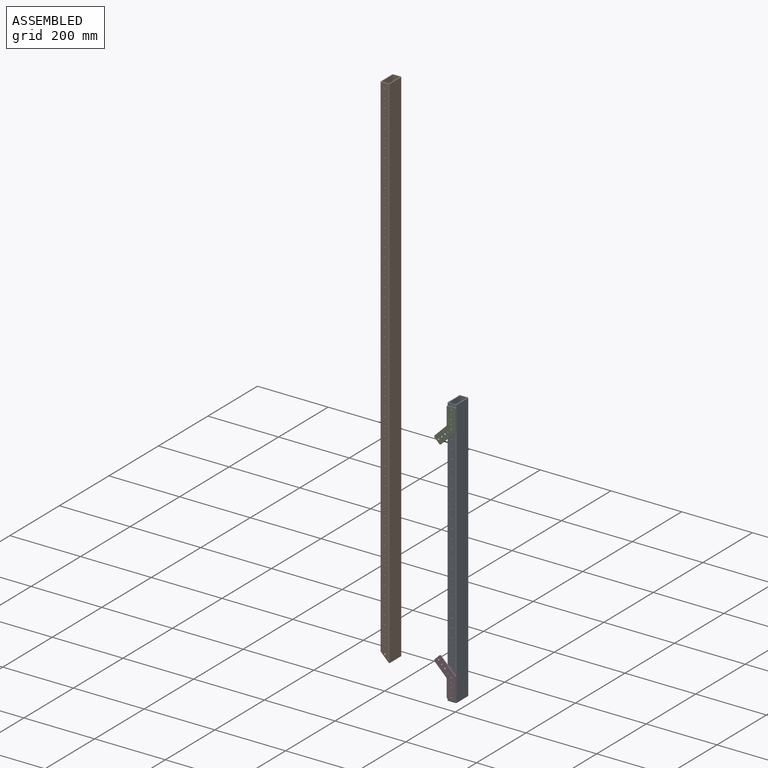
[diagram: assembled view]
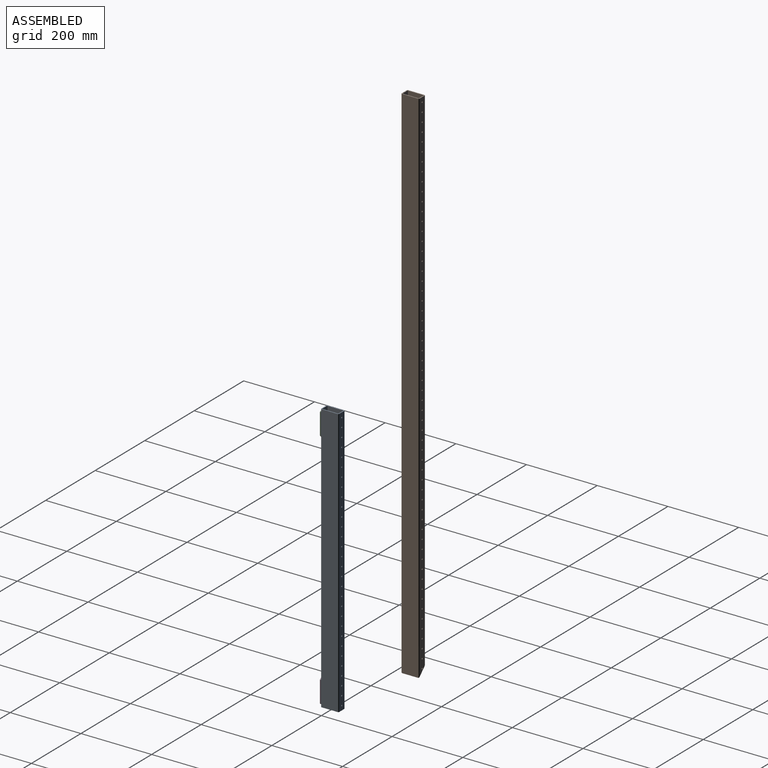
[diagram: assembled view, second angle]
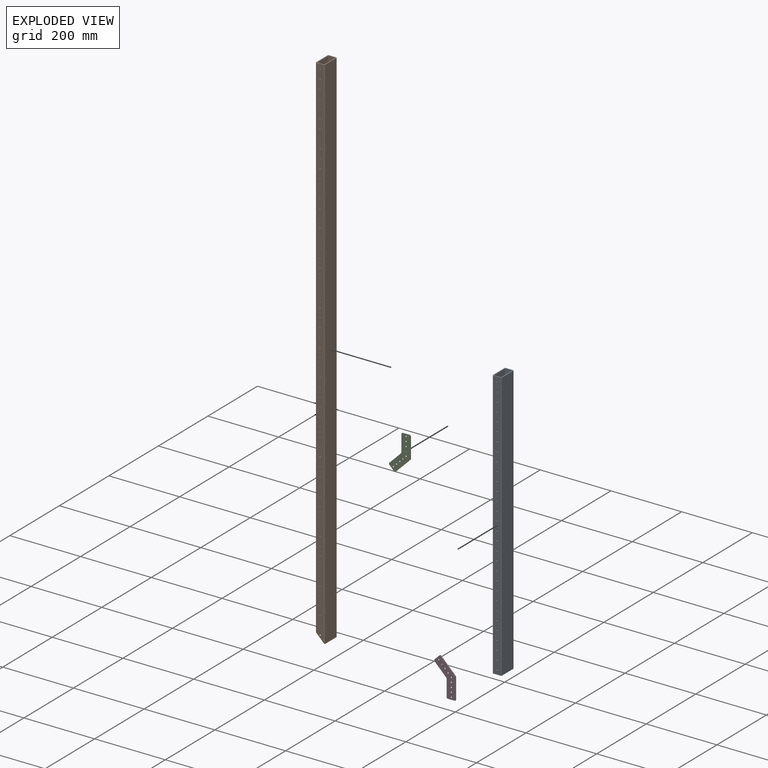
[diagram: exploded view]
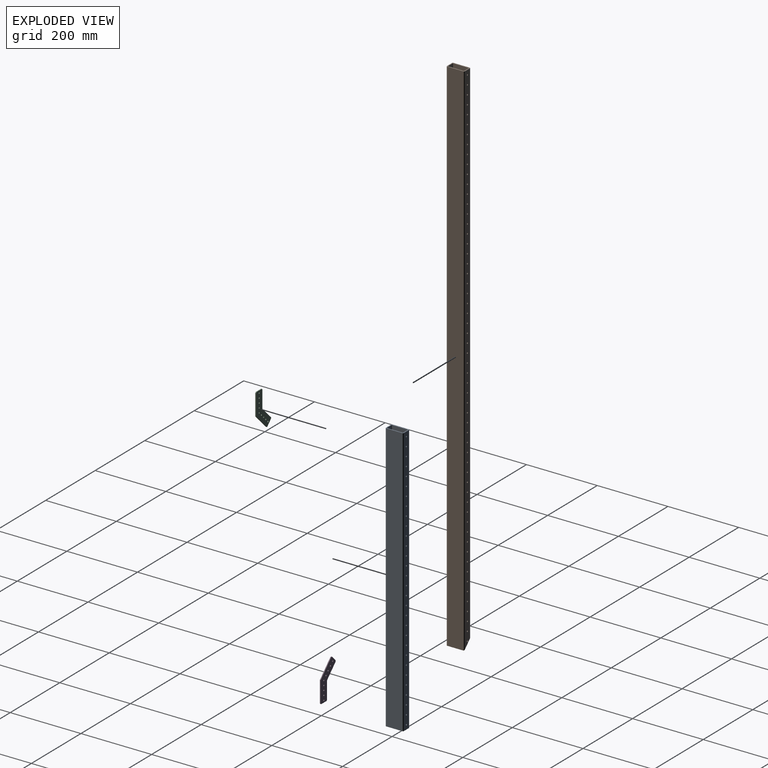
[diagram: exploded view, second angle]
ASSEMBLY  parts=4 mates=2
PART A: 78 faces, bbox 25.4x50.8x762 mm
  f0: plane 762x45.72mm, normal (1,0,0), area 34838.6mm2, adj f2,f3,f74,f77
  f1: plane 762x20.32mm, normal (0,1,0), area 15080mm2, adj f3,f4,f43,f44,f45,f46,f47,f48
  f2: cylinder r=2.54mm len=762mm, axis (0,0,-1), area 3040.2mm2, adj f0,f74,f76,f77
  f3: cylinder r=2.54mm len=762mm, axis (0,0,-1), area 3040.2mm2, adj f0,f1,f74,f77
  f4: cylinder r=2.54mm len=762mm, axis (0,0,-1), area 3040.2mm2, adj f1,f74,f75,f77
  f5: cylinder r=2.54mm len=762mm, axis (0,0,-1), area 3040.2mm2, adj f74,f75,f76,f77
  f6: plane 762x44.72mm, normal (-1,0,0), area 34076.6mm2, adj f10,f13,f74,f77
  f7: plane 762x19.32mm, normal (0,-1,0), area 14318mm2, adj f10,f11,f43,f44,f45,f46,f47,f48
  f8: plane 762x44.72mm, normal (1,0,0), area 34076.6mm2, adj f11,f12,f74,f77
  f9: plane 762x19.32mm, normal (0,1,0), area 14318mm2, adj f12,f13,f14,f15,f16,f17,f18,f19
  f10: cylinder r=0.5mm len=762mm, axis (0,0,1), area 598.5mm2, adj f6,f7,f74,f77
  f11: cylinder r=0.5mm len=762mm, axis (0,0,1), area 598.5mm2, adj f7,f8,f74,f77
  f12: cylinder r=0.5mm len=762mm, axis (0,0,1), area 598.5mm2, adj f8,f9,f74,f77
  f13: cylinder r=0.5mm len=762mm, axis (0,0,1), area 598.5mm2, adj f6,f9,f74,f77
  f14: cylinder r=2.07mm len=4.14mm, axis (0,1,0), area 33mm2, adj f9,f76
  f15: cylinder r=2.07mm len=4.14mm, axis (0,1,0), area 33mm2, adj f9,f76
  f16: cylinder r=2.07mm len=4.14mm, axis (0,1,0), area 33mm2, adj f9,f76
  f17: cylinder r=2.07mm len=4.14mm, axis (0,1,0), area 33mm2, adj f9,f76
  f18: cylinder r=2.07mm len=4.14mm, axis (0,1,0), area 33mm2, adj f9,f76
  f19: cylinder r=2.07mm len=4.14mm, axis (0,1,0), area 33mm2, adj f9,f76
  f20: cylinder r=2.07mm len=4.14mm, axis (0,1,0), area 33mm2, adj f9,f76
  f21: cylinder r=2.07mm len=4.14mm, axis (0,1,0), area 33mm2, adj f9,f76
  f22: cylinder r=2.07mm len=4.14mm, axis (0,1,0), area 33mm2, adj f9,f76
  f23: cylinder r=2.07mm len=4.14mm, axis (0,1,0), area 33mm2, adj f9,f76
  f24: cylinder r=2.07mm len=4.14mm, axis (0,1,0), area 33mm2, adj f9,f76
  f25: cylinder r=2.07mm len=4.14mm, axis (0,1,0), area 33mm2, adj f9,f76
  f26: cylinder r=2.07mm len=4.14mm, axis (0,1,0), area 33mm2, adj f9,f76
  f27: cylinder r=2.07mm len=4.14mm, axis (0,1,0), area 33mm2, adj f9,f76
  f28: cylinder r=2.07mm len=4.14mm, axis (0,1,0), area 33mm2, adj f9,f76
  f29: cylinder r=2.07mm len=4.14mm, axis (0,1,0), area 33mm2, adj f9,f76
  f30: cylinder r=2.07mm len=4.14mm, axis (0,1,0), area 33mm2, adj f9,f76
  f31: cylinder r=2.07mm len=4.14mm, axis (0,1,0), area 33mm2, adj f9,f76
  f32: cylinder r=2.07mm len=4.14mm, axis (0,1,0), area 33mm2, adj f9,f76
  f33: cylinder r=2.07mm len=4.14mm, axis (0,1,0), area 33mm2, adj f9,f76
  f34: cylinder r=2.07mm len=4.14mm, axis (0,1,0), area 33mm2, adj f9,f76
  f35: cylinder r=2.07mm len=4.14mm, axis (0,1,0), area 33mm2, adj f9,f76
  f36: cylinder r=2.07mm len=4.14mm, axis (0,1,0), area 33mm2, adj f9,f76
  f37: cylinder r=2.07mm len=4.14mm, axis (0,1,0), area 33mm2, adj f9,f76
  f38: cylinder r=2.07mm len=4.14mm, axis (0,1,0), area 33mm2, adj f9,f76
  f39: cylinder r=2.07mm len=4.14mm, axis (0,1,0), area 33mm2, adj f9,f76
  f40: cylinder r=2.07mm len=4.14mm, axis (0,1,0), area 33mm2, adj f9,f76
  f41: cylinder r=2.07mm len=4.14mm, axis (0,1,0), area 33mm2, adj f9,f76
  f42: cylinder r=2.07mm len=4.14mm, axis (0,1,0), area 33mm2, adj f9,f76
  f43: cylinder r=2.07mm len=4.14mm, axis (0,1,0), area 33mm2, adj f1,f7
  f44: cylinder r=2.07mm len=4.14mm, axis (0,1,0), area 33mm2, adj f1,f7
  f45: cylinder r=2.07mm len=4.14mm, axis (0,1,0), area 33mm2, adj f1,f7
  f46: cylinder r=2.07mm len=4.14mm, axis (0,1,0), area 33mm2, adj f1,f7
  f47: cylinder r=2.07mm len=4.14mm, axis (0,1,0), area 33mm2, adj f1,f7
  f48: cylinder r=2.07mm len=4.14mm, axis (0,1,0), area 33mm2, adj f1,f7
  f49: cylinder r=2.07mm len=4.14mm, axis (0,1,0), area 33mm2, adj f1,f7
  f50: cylinder r=2.07mm len=4.14mm, axis (0,1,0), area 33mm2, adj f1,f7
  f51: cylinder r=2.07mm len=4.14mm, axis (0,1,0), area 33mm2, adj f1,f7
  f52: cylinder r=2.07mm len=4.14mm, axis (0,1,0), area 33mm2, adj f1,f7
  f53: cylinder r=2.07mm len=4.14mm, axis (0,1,0), area 33mm2, adj f1,f7
  f54: cylinder r=2.07mm len=4.14mm, axis (0,1,0), area 33mm2, adj f1,f7
  f55: cylinder r=2.07mm len=4.14mm, axis (0,1,0), area 33mm2, adj f1,f7
  f56: cylinder r=2.07mm len=4.14mm, axis (0,1,0), area 33mm2, adj f1,f7
  f57: cylinder r=2.07mm len=4.14mm, axis (0,1,0), area 33mm2, adj f1,f7
  f58: cylinder r=2.07mm len=4.14mm, axis (0,1,0), area 33mm2, adj f1,f7
  f59: cylinder r=2.07mm len=4.14mm, axis (0,1,0), area 33mm2, adj f1,f7
  f60: cylinder r=2.07mm len=4.14mm, axis (0,1,0), area 33mm2, adj f1,f7
  f61: cylinder r=2.07mm len=4.14mm, axis (0,1,0), area 33mm2, adj f1,f7
  f62: cylinder r=2.07mm len=4.14mm, axis (0,1,0), area 33mm2, adj f1,f7
  f63: cylinder r=2.07mm len=4.14mm, axis (0,1,0), area 33mm2, adj f1,f7
  f64: cylinder r=2.07mm len=4.14mm, axis (0,1,0), area 33mm2, adj f1,f7
  f65: cylinder r=2.07mm len=4.14mm, axis (0,1,0), area 33mm2, adj f1,f7
  f66: cylinder r=2.07mm len=4.14mm, axis (0,1,0), area 33mm2, adj f1,f7
  f67: cylinder r=2.07mm len=4.14mm, axis (0,1,0), area 33mm2, adj f1,f7
  f68: cylinder r=2.07mm len=4.14mm, axis (0,1,0), area 33mm2, adj f1,f7
  f69: cylinder r=2.07mm len=4.14mm, axis (0,1,0), area 33mm2, adj f1,f7
  f70: cylinder r=2.07mm len=4.14mm, axis (0,1,0), area 33mm2, adj f1,f7
  f71: cylinder r=2.07mm len=4.14mm, axis (0,1,0), area 33mm2, adj f1,f7
  f72: cylinder r=2.07mm len=4.14mm, axis (0,1,0), area 33mm2, adj f1,f7
  f73: cylinder r=2.07mm len=4.14mm, axis (0,1,0), area 33mm2, adj f9,f76
  f74: plane 50.8x25.4mm, normal (0,0,-1), area 356mm2, adj f0,f1,f2,f3,f4,f5,f6,f7
  f75: plane 762x45.72mm, normal (-1,0,0), area 34838.6mm2, adj f4,f5,f74,f77
  f76: plane 762x20.32mm, normal (0,-1,0), area 15080mm2, adj f2,f5,f14,f15,f16,f17,f18,f19
  f77: plane 50.8x25.4mm, normal (0,0,1), area 356mm2, adj f0,f1,f2,f3,f4,f5,f6,f7
PART B: 134 faces, bbox 25.4x50.8x1480.6 mm
  f0: plane 1455.24x45.72mm, normal (-1,0,0), area 66533.4mm2, adj f3,f4,f130,f133
  f1: cylinder r=2.54mm len=1480.64mm, axis (0,0,-1), area 5903.8mm2, adj f5,f130,f131,f133
  f2: cylinder r=2.54mm len=1480.64mm, axis (0,0,-1), area 5903.8mm2, adj f130,f131,f132,f133
  f3: cylinder r=2.54mm len=1457.78mm, axis (0,0,-1), area 5809.8mm2, adj f0,f130,f132,f133
  f4: cylinder r=2.54mm len=1457.78mm, axis (0,0,-1), area 5809.8mm2, adj f0,f5,f130,f133
  f5: plane 1478.1x20.32mm, normal (0,-1,0), area 29047.6mm2, adj f1,f4,f14,f15,f16,f17,f18,f19
  f6: plane 1478.1x44.72mm, normal (-1,0,0), area 66100.4mm2, adj f10,f13,f130,f133
  f7: plane 1477.6x19.32mm, normal (0,-1,0), area 27579.7mm2, adj f10,f11,f72,f73,f74,f75,f76,f77
  f8: plane 1457.78x44.72mm, normal (1,0,0), area 65191.7mm2, adj f11,f12,f130,f133
  f9: plane 1477.6x19.32mm, normal (0,1,0), area 27579.7mm2, adj f12,f13,f14,f15,f16,f17,f18,f19
  f10: cylinder r=0.5mm len=1478.1mm, axis (0,0,1), area 1160.8mm2, adj f6,f7,f130,f133
  f11: cylinder r=0.5mm len=1458.28mm, axis (0,0,1), area 1145.1mm2, adj f7,f8,f130,f133
  f12: cylinder r=0.5mm len=1458.28mm, axis (0,0,1), area 1145.1mm2, adj f8,f9,f130,f133
  f13: cylinder r=0.5mm len=1478.1mm, axis (0,0,1), area 1160.8mm2, adj f6,f9,f130,f133
  f14: cylinder r=2.07mm len=4.14mm, axis (0,1,0), area 33mm2, adj f5,f9
  f15: cylinder r=2.07mm len=4.14mm, axis (0,1,0), area 33mm2, adj f5,f9
  f16: cylinder r=2.07mm len=4.14mm, axis (0,1,0), area 33mm2, adj f5,f9
  f17: cylinder r=2.07mm len=4.14mm, axis (0,1,0), area 33mm2, adj f5,f9
  f18: cylinder r=2.07mm len=4.14mm, axis (0,1,0), area 33mm2, adj f5,f9
  f19: cylinder r=2.07mm len=4.14mm, axis (0,1,0), area 33mm2, adj f5,f9
  f20: cylinder r=2.07mm len=4.14mm, axis (0,1,0), area 33mm2, adj f5,f9
  f21: cylinder r=2.07mm len=4.14mm, axis (0,1,0), area 33mm2, adj f5,f9
  f22: cylinder r=2.07mm len=4.14mm, axis (0,1,0), area 33mm2, adj f5,f9
  f23: cylinder r=2.07mm len=4.14mm, axis (0,1,0), area 33mm2, adj f5,f9
  f24: cylinder r=2.07mm len=4.14mm, axis (0,1,0), area 33mm2, adj f5,f9
  f25: cylinder r=2.07mm len=4.14mm, axis (0,1,0), area 33mm2, adj f5,f9
  f26: cylinder r=2.07mm len=4.14mm, axis (0,1,0), area 33mm2, adj f5,f9
  f27: cylinder r=2.07mm len=4.14mm, axis (0,1,0), area 33mm2, adj f5,f9
  f28: cylinder r=2.07mm len=4.14mm, axis (0,1,0), area 33mm2, adj f5,f9
  f29: cylinder r=2.07mm len=4.14mm, axis (0,1,0), area 33mm2, adj f5,f9
  f30: cylinder r=2.07mm len=4.14mm, axis (0,1,0), area 33mm2, adj f5,f9
  f31: cylinder r=2.07mm len=4.14mm, axis (0,1,0), area 33mm2, adj f5,f9
  f32: cylinder r=2.07mm len=4.14mm, axis (0,1,0), area 33mm2, adj f5,f9
  f33: cylinder r=2.07mm len=4.14mm, axis (0,1,0), area 33mm2, adj f5,f9
  f34: cylinder r=2.07mm len=4.14mm, axis (0,1,0), area 33mm2, adj f5,f9
  f35: cylinder r=2.07mm len=4.14mm, axis (0,1,0), area 33mm2, adj f5,f9
  f36: cylinder r=2.07mm len=4.14mm, axis (0,1,0), area 33mm2, adj f5,f9
  f37: cylinder r=2.07mm len=4.14mm, axis (0,1,0), area 33mm2, adj f5,f9
  f38: cylinder r=2.07mm len=4.14mm, axis (0,1,0), area 33mm2, adj f5,f9
  f39: cylinder r=2.07mm len=4.14mm, axis (0,1,0), area 33mm2, adj f5,f9
  f40: cylinder r=2.07mm len=4.14mm, axis (0,1,0), area 33mm2, adj f5,f9
  f41: cylinder r=2.07mm len=4.14mm, axis (0,1,0), area 33mm2, adj f5,f9
  f42: cylinder r=2.07mm len=4.14mm, axis (0,1,0), area 33mm2, adj f5,f9
  f43: cylinder r=2.07mm len=4.14mm, axis (0,1,0), area 33mm2, adj f5,f9
  f44: cylinder r=2.07mm len=4.14mm, axis (0,1,0), area 33mm2, adj f5,f9
  f45: cylinder r=2.07mm len=4.14mm, axis (0,1,0), area 33mm2, adj f5,f9
  f46: cylinder r=2.07mm len=4.14mm, axis (0,1,0), area 33mm2, adj f5,f9
  f47: cylinder r=2.07mm len=4.14mm, axis (0,1,0), area 33mm2, adj f5,f9
  f48: cylinder r=2.07mm len=4.14mm, axis (0,1,0), area 33mm2, adj f5,f9
  f49: cylinder r=2.07mm len=4.14mm, axis (0,1,0), area 33mm2, adj f5,f9
  f50: cylinder r=2.07mm len=4.14mm, axis (0,1,0), area 33mm2, adj f5,f9
  f51: cylinder r=2.07mm len=4.14mm, axis (0,1,0), area 33mm2, adj f5,f9
  f52: cylinder r=2.07mm len=4.14mm, axis (0,1,0), area 33mm2, adj f5,f9
  f53: cylinder r=2.07mm len=4.14mm, axis (0,1,0), area 33mm2, adj f5,f9
  f54: cylinder r=2.07mm len=4.14mm, axis (0,1,0), area 33mm2, adj f5,f9
  f55: cylinder r=2.07mm len=4.14mm, axis (0,1,0), area 33mm2, adj f5,f9
  f56: cylinder r=2.07mm len=4.14mm, axis (0,1,0), area 33mm2, adj f5,f9
  f57: cylinder r=2.07mm len=4.14mm, axis (0,1,0), area 33mm2, adj f5,f9
  f58: cylinder r=2.07mm len=4.14mm, axis (0,1,0), area 33mm2, adj f5,f9
  f59: cylinder r=2.07mm len=4.14mm, axis (0,1,0), area 33mm2, adj f5,f9
  f60: cylinder r=2.07mm len=4.14mm, axis (0,1,0), area 33mm2, adj f5,f9
  f61: cylinder r=2.07mm len=4.14mm, axis (0,1,0), area 33mm2, adj f5,f9
  f62: cylinder r=2.07mm len=4.14mm, axis (0,1,0), area 33mm2, adj f5,f9
  f63: cylinder r=2.07mm len=4.14mm, axis (0,1,0), area 33mm2, adj f5,f9
  f64: cylinder r=2.07mm len=4.14mm, axis (0,1,0), area 33mm2, adj f5,f9
  f65: cylinder r=2.07mm len=4.14mm, axis (0,1,0), area 33mm2, adj f5,f9
  f66: cylinder r=2.07mm len=4.14mm, axis (0,1,0), area 33mm2, adj f5,f9
  f67: cylinder r=2.07mm len=4.14mm, axis (0,1,0), area 33mm2, adj f5,f9
  f68: cylinder r=2.07mm len=4.14mm, axis (0,1,0), area 33mm2, adj f5,f9
  f69: cylinder r=2.07mm len=4.14mm, axis (0,1,0), area 33mm2, adj f5,f9
  f70: cylinder r=2.07mm len=4.14mm, axis (0,1,0), area 33mm2, adj f5,f9
  f71: cylinder r=2.07mm len=4.14mm, axis (0,1,0), area 33mm2, adj f5,f9
  f72: cylinder r=2.07mm len=4.14mm, axis (0,1,0), area 33mm2, adj f7,f132
  f73: cylinder r=2.07mm len=4.14mm, axis (0,1,0), area 33mm2, adj f7,f132
  f74: cylinder r=2.07mm len=4.14mm, axis (0,1,0), area 33mm2, adj f7,f132
  f75: cylinder r=2.07mm len=4.14mm, axis (0,1,0), area 33mm2, adj f7,f132
  f76: cylinder r=2.07mm len=4.14mm, axis (0,1,0), area 33mm2, adj f7,f132
  f77: cylinder r=2.07mm len=4.14mm, axis (0,1,0), area 33mm2, adj f7,f132
  f78: cylinder r=2.07mm len=4.14mm, axis (0,1,0), area 33mm2, adj f7,f132
  f79: cylinder r=2.07mm len=4.14mm, axis (0,1,0), area 33mm2, adj f7,f132
  f80: cylinder r=2.07mm len=4.14mm, axis (0,1,0), area 33mm2, adj f7,f132
  f81: cylinder r=2.07mm len=4.14mm, axis (0,1,0), area 33mm2, adj f7,f132
  f82: cylinder r=2.07mm len=4.14mm, axis (0,1,0), area 33mm2, adj f7,f132
  f83: cylinder r=2.07mm len=4.14mm, axis (0,1,0), area 33mm2, adj f7,f132
  f84: cylinder r=2.07mm len=4.14mm, axis (0,1,0), area 33mm2, adj f7,f132
  f85: cylinder r=2.07mm len=4.14mm, axis (0,1,0), area 33mm2, adj f7,f132
  f86: cylinder r=2.07mm len=4.14mm, axis (0,1,0), area 33mm2, adj f7,f132
  f87: cylinder r=2.07mm len=4.14mm, axis (0,1,0), area 33mm2, adj f7,f132
  f88: cylinder r=2.07mm len=4.14mm, axis (0,1,0), area 33mm2, adj f7,f132
  f89: cylinder r=2.07mm len=4.14mm, axis (0,1,0), area 33mm2, adj f7,f132
  f90: cylinder r=2.07mm len=4.14mm, axis (0,1,0), area 33mm2, adj f7,f132
  f91: cylinder r=2.07mm len=4.14mm, axis (0,1,0), area 33mm2, adj f7,f132
  f92: cylinder r=2.07mm len=4.14mm, axis (0,1,0), area 33mm2, adj f7,f132
  f93: cylinder r=2.07mm len=4.14mm, axis (0,1,0), area 33mm2, adj f7,f132
  f94: cylinder r=2.07mm len=4.14mm, axis (0,1,0), area 33mm2, adj f7,f132
  f95: cylinder r=2.07mm len=4.14mm, axis (0,1,0), area 33mm2, adj f7,f132
  f96: cylinder r=2.07mm len=4.14mm, axis (0,1,0), area 33mm2, adj f7,f132
  f97: cylinder r=2.07mm len=4.14mm, axis (0,1,0), area 33mm2, adj f7,f132
  f98: cylinder r=2.07mm len=4.14mm, axis (0,1,0), area 33mm2, adj f7,f132
  f99: cylinder r=2.07mm len=4.14mm, axis (0,1,0), area 33mm2, adj f7,f132
  f100: cylinder r=2.07mm len=4.14mm, axis (0,1,0), area 33mm2, adj f7,f132
  f101: cylinder r=2.07mm len=4.14mm, axis (0,1,0), area 33mm2, adj f7,f132
  f102: cylinder r=2.07mm len=4.14mm, axis (0,1,0), area 33mm2, adj f7,f132
  f103: cylinder r=2.07mm len=4.14mm, axis (0,1,0), area 33mm2, adj f7,f132
  f104: cylinder r=2.07mm len=4.14mm, axis (0,1,0), area 33mm2, adj f7,f132
  f105: cylinder r=2.07mm len=4.14mm, axis (0,1,0), area 33mm2, adj f7,f132
  f106: cylinder r=2.07mm len=4.14mm, axis (0,1,0), area 33mm2, adj f7,f132
  f107: cylinder r=2.07mm len=4.14mm, axis (0,1,0), area 33mm2, adj f7,f132
  f108: cylinder r=2.07mm len=4.14mm, axis (0,1,0), area 33mm2, adj f7,f132
  f109: cylinder r=2.07mm len=4.14mm, axis (0,1,0), area 33mm2, adj f7,f132
  f110: cylinder r=2.07mm len=4.14mm, axis (0,1,0), area 33mm2, adj f7,f132
  f111: cylinder r=2.07mm len=4.14mm, axis (0,1,0), area 33mm2, adj f7,f132
  f112: cylinder r=2.07mm len=4.14mm, axis (0,1,0), area 33mm2, adj f7,f132
  f113: cylinder r=2.07mm len=4.14mm, axis (0,1,0), area 33mm2, adj f7,f132
  f114: cylinder r=2.07mm len=4.14mm, axis (0,1,0), area 33mm2, adj f7,f132
  f115: cylinder r=2.07mm len=4.14mm, axis (0,1,0), area 33mm2, adj f7,f132
  f116: cylinder r=2.07mm len=4.14mm, axis (0,1,0), area 33mm2, adj f7,f132
  f117: cylinder r=2.07mm len=4.14mm, axis (0,1,0), area 33mm2, adj f7,f132
  f118: cylinder r=2.07mm len=4.14mm, axis (0,1,0), area 33mm2, adj f7,f132
  f119: cylinder r=2.07mm len=4.14mm, axis (0,1,0), area 33mm2, adj f7,f132
  f120: cylinder r=2.07mm len=4.14mm, axis (0,1,0), area 33mm2, adj f7,f132
  f121: cylinder r=2.07mm len=4.14mm, axis (0,1,0), area 33mm2, adj f7,f132
  f122: cylinder r=2.07mm len=4.14mm, axis (0,1,0), area 33mm2, adj f7,f132
  f123: cylinder r=2.07mm len=4.14mm, axis (0,1,0), area 33mm2, adj f7,f132
  f124: cylinder r=2.07mm len=4.14mm, axis (0,1,0), area 33mm2, adj f7,f132
  f125: cylinder r=2.07mm len=4.14mm, axis (0,1,0), area 33mm2, adj f7,f132
  f126: cylinder r=2.07mm len=4.14mm, axis (0,1,0), area 33mm2, adj f7,f132
  f127: cylinder r=2.07mm len=4.14mm, axis (0,1,0), area 33mm2, adj f7,f132
  f128: cylinder r=2.07mm len=4.14mm, axis (0,1,0), area 33mm2, adj f7,f132
  f129: cylinder r=2.07mm len=4.14mm, axis (0,1,0), area 33mm2, adj f7,f132
  f130: plane 50.8x25.4mm, normal (0,0,1), area 356mm2, adj f0,f1,f2,f3,f4,f5,f6,f7
  f131: plane 1480.64x45.72mm, normal (1,0,0), area 67694.7mm2, adj f1,f2,f130,f133
  f132: plane 1478.1x20.32mm, normal (0,1,0), area 29047.6mm2, adj f2,f3,f72,f73,f74,f75,f76,f77
  f133: plane 50.8x25.4mm, normal (-0.71,0,-0.71), area 503.4mm2, adj f0,f1,f2,f3,f4,f5,f6,f7
PART C: 22 faces, bbox 60.5x104.8x2.3 mm
  f0: cylinder r=2.07mm len=4.14mm, axis (0,0,-1), area 29.7mm2, adj f9,f10
  f1: cylinder r=2.07mm len=4.14mm, axis (0,0,-1), area 29.7mm2, adj f9,f10
  f2: cylinder r=2.07mm len=4.14mm, axis (0,0,-1), area 29.7mm2, adj f9,f10
  f3: cylinder r=2.07mm len=4.14mm, axis (0,0,-1), area 29.7mm2, adj f9,f10
  f4: cylinder r=2.07mm len=4.14mm, axis (0,0,-1), area 29.7mm2, adj f9,f10
  f5: cylinder r=2.07mm len=4.14mm, axis (0,0,-1), area 29.7mm2, adj f9,f10
  f6: cylinder r=2.07mm len=4.14mm, axis (0,0,-1), area 29.7mm2, adj f9,f10
  f7: cylinder r=2.07mm len=4.14mm, axis (0,0,-1), area 29.7mm2, adj f9,f10
  f8: cylinder r=2.07mm len=4.14mm, axis (0,0,-1), area 29.7mm2, adj f9,f10
  f9: plane 104.8x60.48mm, normal (0,0,1), area 2767.1mm2, adj f0,f1,f2,f3,f4,f5,f6,f7
  f10: plane 104.8x60.48mm, normal (0,0,-1), area 2767.1mm2, adj f0,f1,f2,f3,f4,f5,f6,f7
  f11: plane 60.12x2.29mm, normal (-1,0,0), area 137.4mm2, adj f9,f10,f14,f20
  f12: plane 21.08x2.29mm, normal (0,-1,0), area 48.2mm2, adj f9,f10,f19,f20
  f13: plane 46.97x2.29mm, normal (1,0,0), area 107.4mm2, adj f9,f10,f19,f21
  f14: plane 42.51x42.51mm, normal (-0.71,0.71,0), area 137.4mm2, adj f9,f10,f11,f18
  f15: plane 14.91x14.91mm, normal (0.71,0.71,0), area 48.2mm2, adj f9,f10,f17,f18
  f16: plane 33.22x33.22mm, normal (0.71,-0.71,0), area 107.4mm2, adj f9,f10,f17,f21
  f17: plane 3.05x2.29mm, normal (1,0,0), area 7mm2, adj f9,f10,f15,f16
  f18: plane 3.05x2.29mm, normal (0,1,0), area 7mm2, adj f9,f10,f14,f15
  f19: plane 2.29x2.16mm, normal (0.71,-0.71,0), area 7mm2, adj f9,f10,f12,f13
  f20: plane 2.29x2.16mm, normal (-0.71,-0.71,0), area 7mm2, adj f9,f10,f11,f12
  f21: cylinder r=6.35mm len=4.49mm, axis (0,0,1), area 11.4mm2, adj f9,f10,f13,f16
PART D: same geometry as C
PLACE A t=(-10.16,25.4,749.3)mm
PLACE B t=(-244.28,88.92,746.31)mm
PLACE C rot(axis=(0,-0.71,0.71),180deg) t=(-10.16,0,698.5)mm
PLACE D rot(axis=(0,0.71,0.71),180deg) t=(-10.16,-2.29,63.5)mm
MATE fastened C.f4 <-> A.f14  axis (0,1,0) through (-10.16,0,749.3)mm
MATE fastened A.f72 <-> D.f4  axis (0,-1,0) through (-10.16,0,12.7)mm
